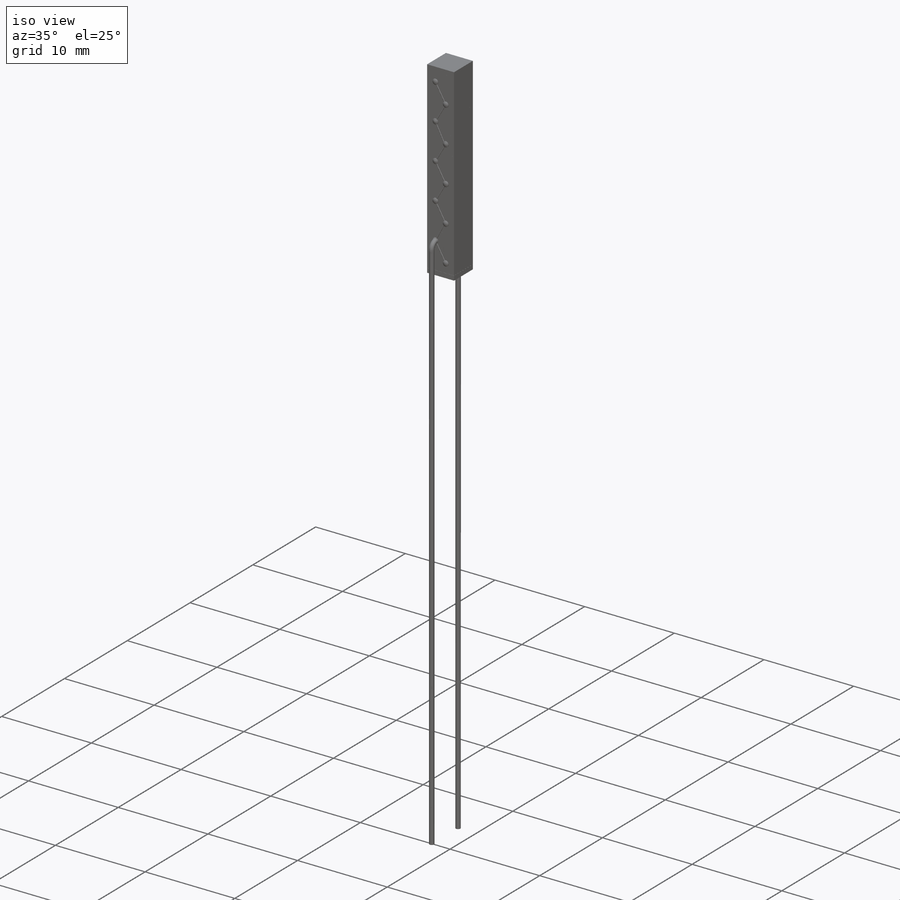
[diagram: iso view]
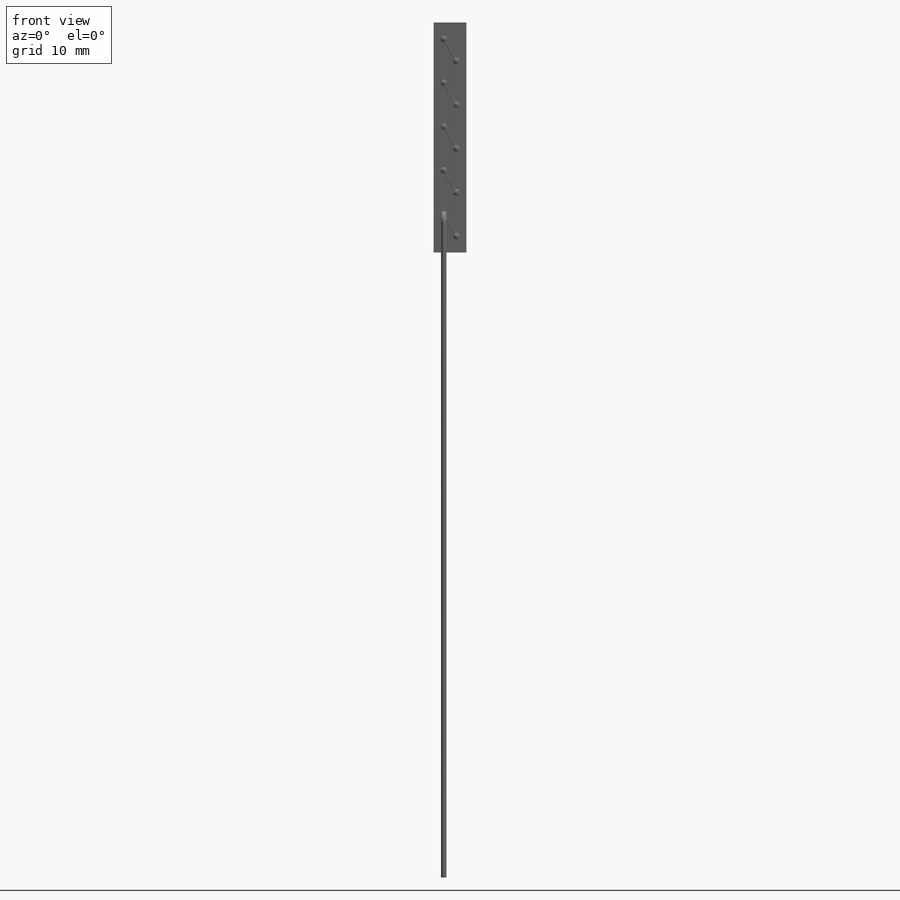
[diagram: front view]
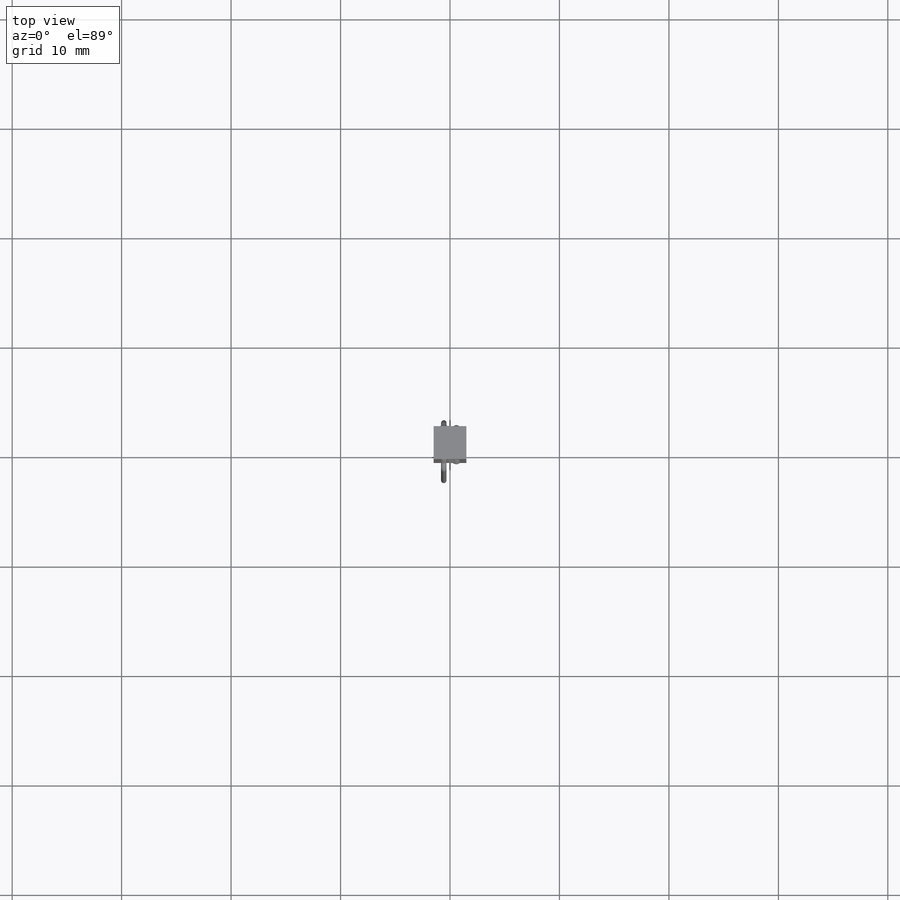
[diagram: top view]
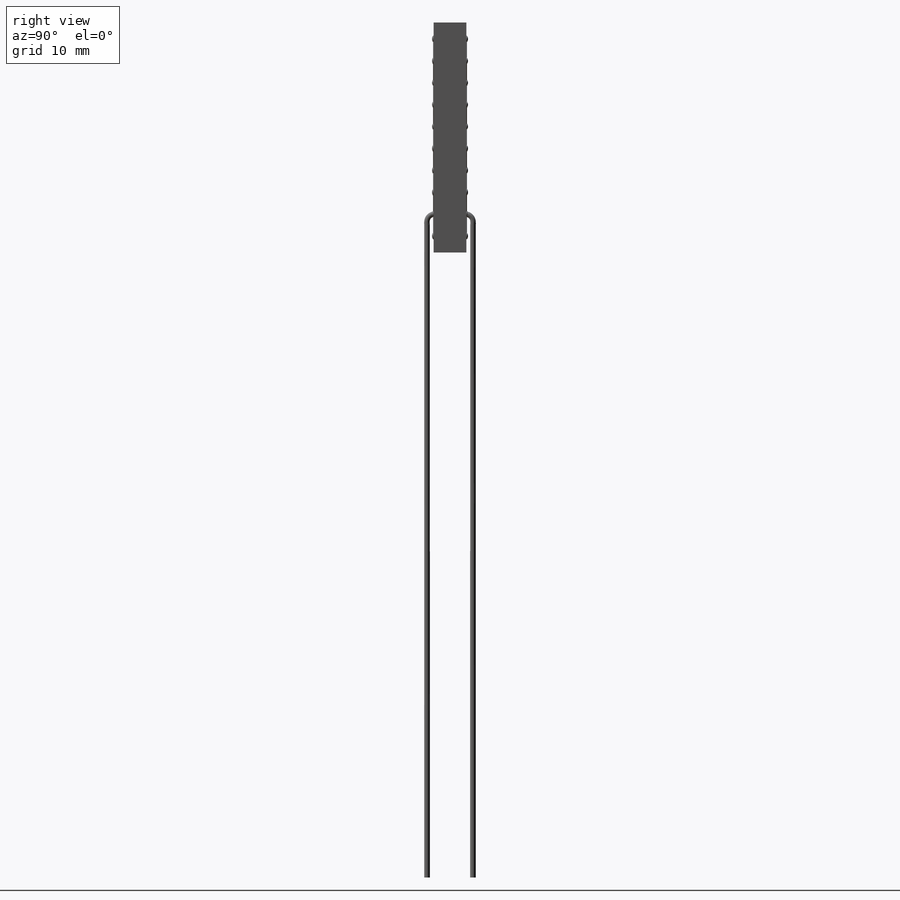
[diagram: right view]
SOLIDWORKS PART (.sldprt)
format: sldprt  version: not decoded by parser v0  size: 1,199,616 bytes
history: native  units: mm
features: sketch x16, plane x14, dome x12, extrude x5, mirror x5, sweep x4, material x1, pattern_linear x1 (+11 scaffold rows collapsed)
feature tree (69):
  scaffold x11  (default folders/planes/origin — collapsed)
  material  "Material <not specified>"
  sketch  "Sketch1"  dims[c1.D1=~27.482152mm c1.D2=~36.551262mm c2.D1=3.0mm c2.D2=110.0mm]
  extrude  "Boss-Extrude1"  Depth=2mm
  plane  "Plane1"  Offset=1.2mm
  pattern_linear  "LPattern3"  Count1=10 Count2=1 Spacing1=2.0001mm Spacing2=2.5mm
  plane  "Plane16"  Offset=0mm
  plane  "Plane17"  Offset=0.01mm
  sketch  "Sketch2"  dims[c1.D1=5.0mm c2.D1=90.0deg c2.D2=5.0mm c3.D1=3.0mm c3.D2=3.0mm]
  extrude  "Boss-Extrude2"  Depth=0.5mm
  sketch  "Sketch6"  dims[D1=1.0mm]
  plane  "Plane29"  Offset=1.5mm
  sketch  "Sketch34"  dims[D1=3.0mm]
  sketch  "Sketch36"  dims[D1=~1.939642mm]
  sketch  "Sketch7"  dims[D1=~7.338108mm]
  extrude  "Boss-Extrude6"  Depth=0.05mm
  dome  "Dome1"
  dome  "Dome5"
  dome  "Dome6"
  dome  "Dome7"
  plane  "Plane18"  Offset=0mm
  sketch  "Sketch8"  dims[D1=~2.096715mm]
  plane  "Plane19"
  sketch  "Sketch9"  dims[D1=0.1mm D2=0.05mm]
  sweep  "Sweep1"
  plane  "Plane20"  Offset=2.5mm
  sketch  "Sketch24"  dims[D1=~2.096715mm]
  plane  "Plane26"
  sketch  "Sketch25"  dims[D1=0.02mm]
  sweep  "Sweep3"
  dome  "Dome8"
  plane  "Plane21"  Offset=0mm
  sketch  "Sketch11"  dims[D1=~2.538018mm]
  plane  "Plane27"
  sketch  "Sketch33"  dims[D1=60.0mm]
  sweep  "Sweep8"
  plane  "Plane28"  Offset=1.5mm
  mirror  "Mirror1"
  plane  "Plane30"
  mirror  "Mirror3"
  mirror  "Mirror4"
  mirror  "Mirror5"
  dome  "Dome11"
  dome  "Dome12"
  dome  "Dome13"
  dome  "Dome14"
  sketch  "Sketch38"  dims[D1=4.0002mm]
  extrude  "Boss-Extrude7"  Depth=0.05mm
  dome  "Dome15"
  sketch  "Sketch39"  dims[D1=~2.309128mm]
  plane  "Plane31"
  sketch  "Sketch41"  dims[D1=~0.085171mm]
  sweep  "Sweep9"
  mirror  "Mirror7"
  dome  "Dome16"
  dome  "Dome18"
  plane  "Plane32"  Offset=0.0001mm
  sketch  "Sketch42"  dims[D1=3.0mm D2=3.0mm]
  extrude  "Boss-Extrude8"  Depth=0.5mm
decode coverage: 22 of 43 modeling features carry decoded parameters
note: ~ marks probable driven/reference dimensions
summary: profile_refs inferred from adjacent sketches, not decoded
note: suppression state not decoded; provenance and decode notes live in map.json
